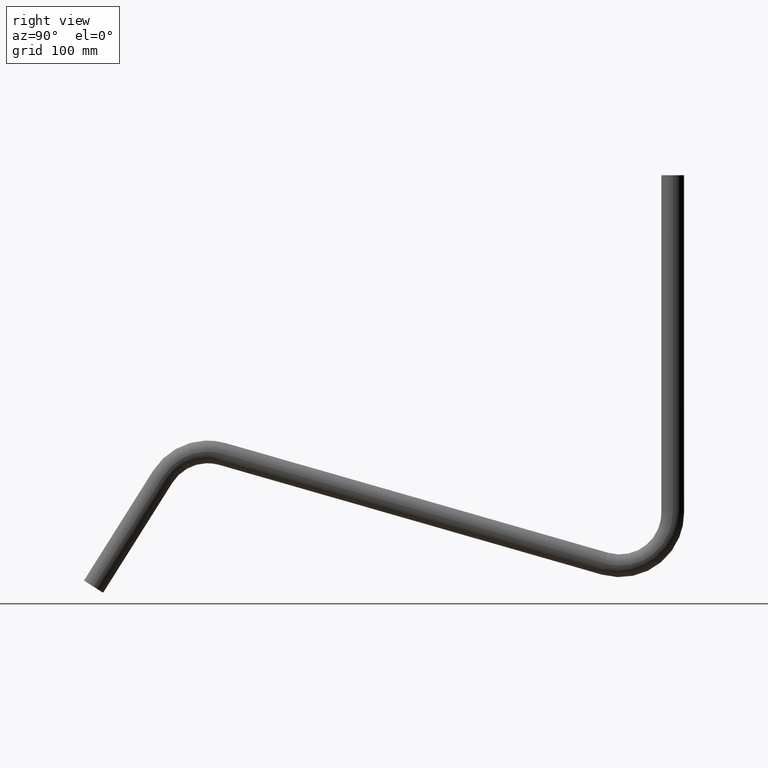
[diagram: clean part render]
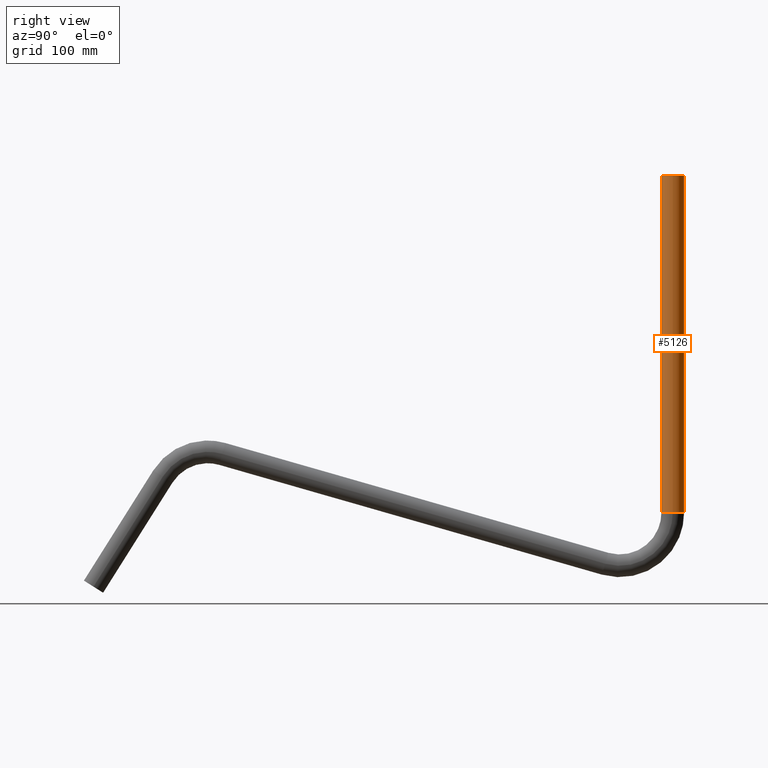
[diagram: same view with one face highlighted and labeled with its STEP entity id]
A machine part, right view. The second image highlights one B-rep face of the part: STEP entity #5126.
In plain terms, the highlighted cylindrical surface (bore or boss wall) has radius 16.85 mm, axis along (0, 0, 1).
Its self-contained STEP definition (entity closure, byte-faithful):
#1 = CIRCLE ( 'NONE', #2380, 16.85000000000000142 ) ;
#1435 = CIRCLE ( 'NONE', #9938, 16.85000000000000142 ) ;
#1985 = DIRECTION ( 'NONE',  ( 1.000000000000000000, 0.000000000000000000, 0.000000000000000000 ) ) ;
#2064 = EDGE_CURVE ( 'NONE', #10555, #10555, #1, .T. ) ;
#2380 = AXIS2_PLACEMENT_3D ( 'NONE', #13662, #7322, #1985 ) ;
#2797 = EDGE_LOOP ( 'NONE', ( #11508 ) ) ;
#3608 = DIRECTION ( 'NONE',  ( 1.000000000000000000, 0.000000000000000000, 0.000000000000000000 ) ) ;
#3643 = AXIS2_PLACEMENT_3D ( 'NONE', #5644, #8752, #3608 ) ;
#3852 = CARTESIAN_POINT ( 'NONE',  ( 16.85000000000000142, 853.5009607480266141, 108.7640895160294008 ) ) ;
#3943 = CARTESIAN_POINT ( 'NONE',  ( 16.85000000000000142, 853.5009607480266141, 606.1940895160294076 ) ) ;
#4213 = EDGE_LOOP ( 'NONE', ( #8772 ) ) ;
#5126 = ADVANCED_FACE ( 'NONE', ( #6785, #5307 ), #7946, .T. ) ;
#5307 = FACE_OUTER_BOUND ( 'NONE', #2797, .T. ) ;
#5425 = VERTEX_POINT ( 'NONE', #3943 ) ;
#5644 = CARTESIAN_POINT ( 'NONE',  ( 0.000000000000000000, 853.5009607480266141, 108.7640895160294008 ) ) ;
#6785 = FACE_OUTER_BOUND ( 'NONE', #4213, .T. ) ;
#6850 = EDGE_CURVE ( 'NONE', #5425, #5425, #1435, .T. ) ;
#7322 = DIRECTION ( 'NONE',  ( 0.000000000000000000, 0.000000000000000000, 1.000000000000000000 ) ) ;
#7946 = CYLINDRICAL_SURFACE ( 'NONE', #3643, 16.85000000000000142 ) ;
#8168 = CARTESIAN_POINT ( 'NONE',  ( 0.000000000000000000, 853.5009607480266141, 606.1940895160294076 ) ) ;
#8752 = DIRECTION ( 'NONE',  ( 0.000000000000000000, 0.000000000000000000, 1.000000000000000000 ) ) ;
#8772 = ORIENTED_EDGE ( 'NONE', *, *, #6850, .F. ) ;
#9938 = AXIS2_PLACEMENT_3D ( 'NONE', #8168, #10125, #10209 ) ;
#10125 = DIRECTION ( 'NONE',  ( 0.000000000000000000, 0.000000000000000000, 1.000000000000000000 ) ) ;
#10209 = DIRECTION ( 'NONE',  ( 1.000000000000000000, 0.000000000000000000, 0.000000000000000000 ) ) ;
#10555 = VERTEX_POINT ( 'NONE', #3852 ) ;
#11508 = ORIENTED_EDGE ( 'NONE', *, *, #2064, .T. ) ;
#13662 = CARTESIAN_POINT ( 'NONE',  ( 0.000000000000000000, 853.5009607480266141, 108.7640895160294008 ) ) ;